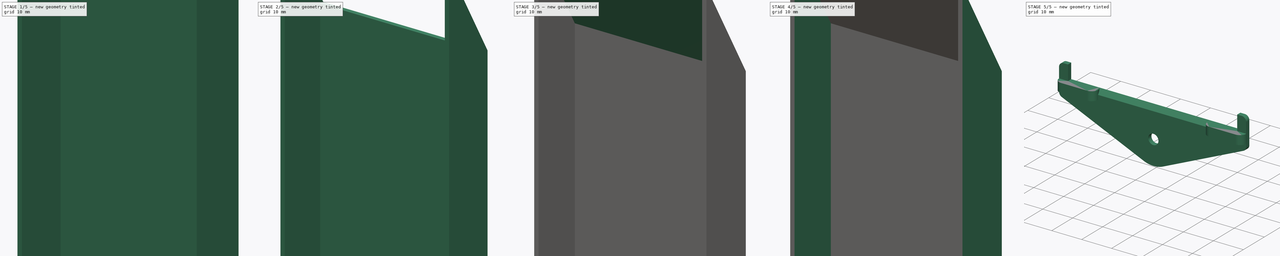
[diagram: build sequence overview — one tinted view per stage of 5, left to right]
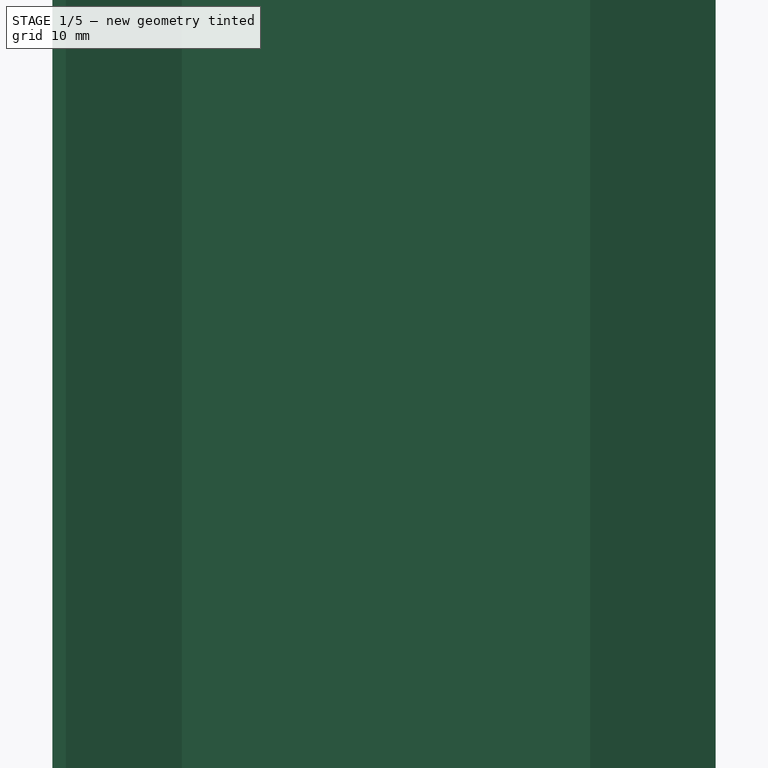
[diagram: stage 1 of 5 — iso view after this stage's code; geometry added in this stage tinted green]
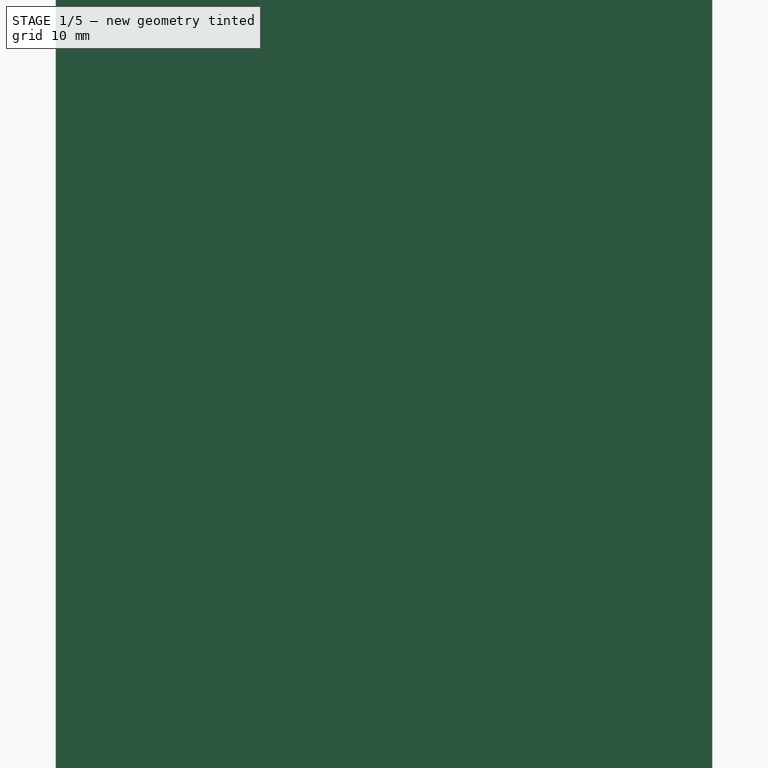
[diagram: stage 1 of 5 — front view after this stage's code; geometry added in this stage tinted green]
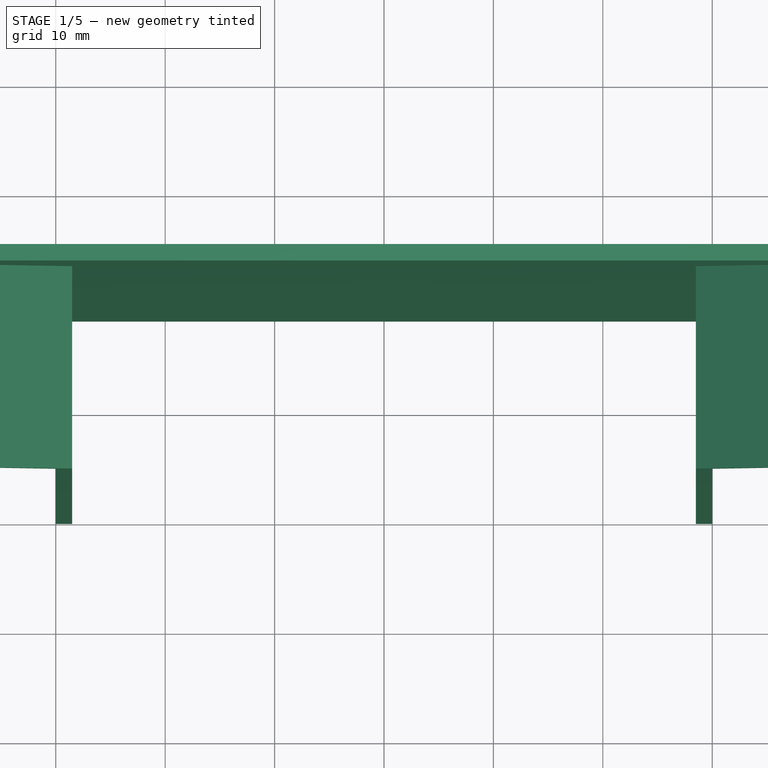
[diagram: stage 1 of 5 — top view after this stage's code; geometry added in this stage tinted green]
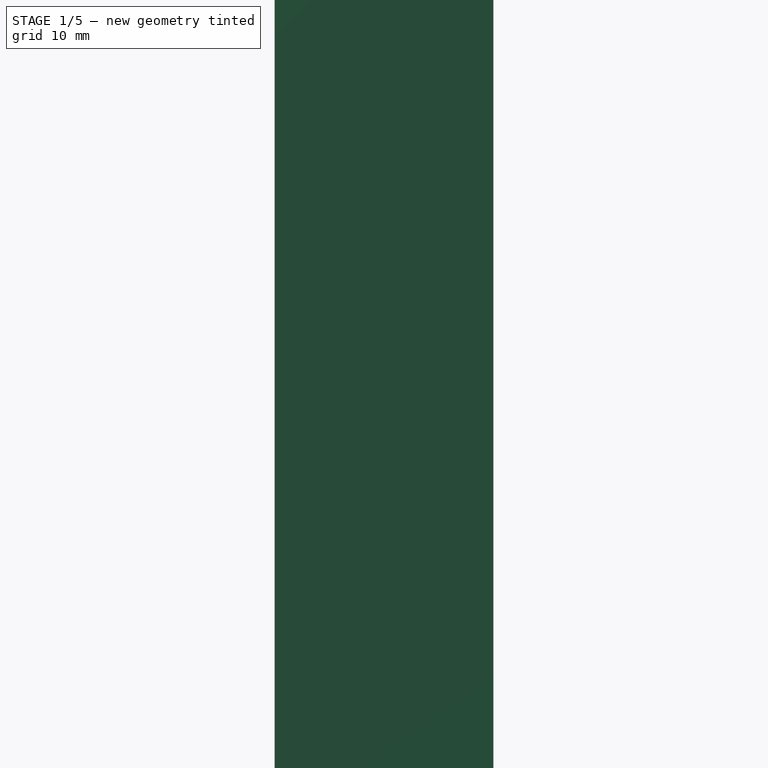
[diagram: stage 1 of 5 — right view after this stage's code; geometry added in this stage tinted green]
FCSTD DOCUMENT  (FreeCAD 1.1R20260325 (Git shallow))
Label: PoopChute
License: Creative Commons Attribution 4.0
objects: Sketcher::SketchObject×18, PartDesign::Pad×11, PartDesign::Pocket×5, App::Point×3, PartDesign::Hole×3, PartDesign::Body×3, PartDesign::SubShapeBinder×2, PartDesign::LinearPattern×1, PartDesign::Chamfer×1
note: 103 computed .brp shape members not serialized (recipe doc carries the construction recipe); baked Part::Feature solids carry a one-line shape summary decoded from their .brp

FEATURE [App::Point] Origin001
  Role = Origin
FEATURE [Sketcher::SketchObject] Sketch
  ArcFitTolerance = 1e-06
  AttachmentSupport = -> [Origin]
  ExternalTypes = [0,0,0,0,0,0,0,0]
  FullyConstrained = true
  MakeInternals = false
  MapMode = 5
  _ExternalGeoVersion = 1
  sketch-geometry (8):
    g0: LineSegment StartX=-30 StartY=0 StartZ=0 EndX=-30 EndY=-20 EndZ=0
    g1: LineSegment StartX=30 StartY=-20 StartZ=0 EndX=30 EndY=0 EndZ=0
    g2: LineSegment StartX=30 StartY=0 StartZ=0 EndX=-30 EndY=0 EndZ=0
    g3: LineSegment StartX=-28.5 StartY=-1.5 StartZ=0 EndX=-28.5 EndY=-20 EndZ=0
    g4: LineSegment StartX=28.5 StartY=-20 StartZ=0 EndX=28.5 EndY=-1.5 EndZ=0
    g5: LineSegment StartX=28.5 StartY=-1.5 StartZ=0 EndX=-28.5 EndY=-1.5 EndZ=0
    g6: LineSegment StartX=-30 StartY=-20 StartZ=0 EndX=-28.5 EndY=-20 EndZ=0
    g7: LineSegment StartX=28.5 StartY=-20 StartZ=0 EndX=30 EndY=-20 EndZ=0
  constraints (22):
    c: Coincident(g1,g2)
    c: Coincident(g2,g0)
    c: Vertical(g0)
    c: Vertical(g1)
    c: Horizontal(g2)
    c: Coincident(g4,g5)
    c: Coincident(g5,g3)
    c: Vertical(g3)
    c: Vertical(g4)
    c: Symmetric(g0,g1,g-1)
    c: Symmetric(g3,g4,g-2)
    c: DistanceY(g0,g0) = 20
    c: DistanceX(g2,g2) = 60
    c: DistanceX(g4,g1) = 1.5
    c: DistanceY(g4,g1) = 1.5
    c: Coincident(g6,g0)
    c: Coincident(g6,g3)
    c: Coincident(g7,g4)
    c: Coincident(g7,g1)
    c: Horizontal(g7)
    c: Horizontal(g6)
    c: Horizontal(g3,g4)
FEATURE [PartDesign::Pad] Pad
  Direction = (0,0,1)
  Length = 290
  Length2 = 10
  Profile = -> Sketch
  ReferenceAxis = -> Sketch [N_Axis]
  SideType = 0
  Suppressed = false
  Type = 0
  Type2 = 0
FEATURE [Sketcher::SketchObject] Sketch001
  ArcFitTolerance = 1e-06
  AttachmentSupport = -> [Pad]
  ExternalGeometry = -> [Pad]
  ExternalTypes = [0,0,0,0]
  FullyConstrained = true
  MakeInternals = false
  MapMode = 5
  Placement = pos=(0,-20,0) rot=(1,0,0;1.5708rad)
  _ExternalGeoVersion = 1
  sketch-geometry (8):
    g0: LineSegment StartX=-59.9142 StartY=318.586 StartZ=0 EndX=-58.5 EndY=320 EndZ=0
    g1: LineSegment StartX=-58.5 StartY=320 StartZ=0 EndX=-28.5 EndY=290 EndZ=0
    g2: LineSegment StartX=58.5 StartY=320 StartZ=0 EndX=28.5 EndY=290 EndZ=0
    g3: LineSegment StartX=-59.9142 StartY=318.586 StartZ=0 EndX=-30 EndY=288.672 EndZ=0
    g4: LineSegment StartX=58.5 StartY=320 StartZ=0 EndX=59.9142 EndY=318.586 EndZ=0
    g5: LineSegment StartX=59.9142 StartY=318.586 StartZ=0 EndX=30 EndY=288.672 EndZ=0
    g6: LineSegment StartX=-30 StartY=288.672 StartZ=0 EndX=-28.5 EndY=290 EndZ=0
    g7: LineSegment StartX=28.5 StartY=290 StartZ=0 EndX=30 EndY=288.672 EndZ=0
  constraints (20):
    c: Coincident(g0,g1)
    c: Perpendicular(g0,g1)
    c: Symmetric(g0,g2,g-2)
    c: Coincident(g1,g-6)
    c: Coincident(g3,g0)
    c: PointOnObject(g3,g-3)
    c: Parallel(g3,g1)
    c: Distance(g0) = 2
    c: DistanceY(g1,g0) = 30
    c: Angle(g-3,g3) = 0.785398
    c: Coincident(g2,g-5)
    c: Coincident(g4,g2)
    c: Coincident(g5,g4)
    c: PointOnObject(g5,g-4)
    c: Coincident(g6,g3)
    c: Coincident(g6,g1)
    c: Coincident(g7,g2)
    c: Coincident(g7,g5)
    c: Symmetric(g0,g4,g-2)
    c: Horizontal(g3,g5)
FEATURE [PartDesign::Pad] Pad001
  BaseFeature = -> Pad
  Direction = (0,-1,2e-16)
  Length = 10
  Length2 = 10
  Profile = -> Sketch001
  ReferenceAxis = -> Sketch001 [N_Axis]
  Refine = true
  Reversed = true
  SideType = 0
  Suppressed = false
  Type = 3
  Type2 = 0
  UpToFace = -> Pad [Face3]
FEATURE [Sketcher::SketchObject] Sketch002
  ArcFitTolerance = 1e-06
  AttachmentSupport = -> [Pad001]
  ExternalGeometry = -> [Pad001]
  ExternalTypes = [0,0,0]
  FullyConstrained = true
  MakeInternals = false
  MapMode = 5
  Placement = pos=(0,-1.5,0) rot=(1,0,0;1.5708rad)
  _ExternalGeoVersion = 1
  sketch-geometry (1):
    g0: LineSegment StartX=58.5 StartY=320 StartZ=0 EndX=-58.5 EndY=320 EndZ=0
  constraints (2):
    c: Coincident(g0,g-5)
    c: Coincident(g0,g-3)
FEATURE [PartDesign::Pad] Pad002
  BaseFeature = -> Pad001
  Direction = (0,-1,0)
  Length = 10
  Length2 = 10
  Profile = -> Sketch002
  ReferenceAxis = -> Sketch002 [N_Axis]
  Refine = true
  Reversed = true
  SideType = 0
  Suppressed = false
  Type = 3
  Type2 = 0
  UpToFace = -> Pad001 [Face16]
FEATURE [Sketcher::SketchObject] Sketch003
  ArcFitTolerance = 1e-06
  AttachmentSupport = -> [Pad001]
  ExternalTypes = [0,0]
  FullyConstrained = true
  MakeInternals = false
  MapMode = 5
  Placement = pos=(0,0,0) rot=(0,0.707107,0.707107;3.14159rad)
  _ExternalGeoVersion = 1
  sketch-geometry (19):
    g0: ArcOfCircle CenterX=-35.6569 CenterY=290 CenterZ=0 NormalX=0 NormalY=0 NormalZ=1 AngleXU=0 Radius=5 StartAngle=3.14159 EndAngle=3.92699
    g1: LineSegment StartX=-40.6569 StartY=290 StartZ=0 EndX=-40.6569 EndY=300.657 EndZ=0
    g2: ArcOfCircle CenterX=-35 CenterY=5 CenterZ=0 NormalX=0 NormalY=0 NormalZ=1 AngleXU=0 Radius=5 StartAngle=1.5708 EndAngle=4.71239
    g3: ArcOfCircle CenterX=35 CenterY=5 CenterZ=0 NormalX=0 NormalY=0 NormalZ=1 AngleXU=0 Radius=5 StartAngle=4.71239 EndAngle=7.85398
    g4: LineSegment StartX=35 StartY=10 StartZ=0 EndX=30 EndY=10 EndZ=0
    g5: LineSegment StartX=30 StartY=10 StartZ=0 EndX=30 EndY=0 EndZ=0
    g6: LineSegment StartX=30 StartY=0 StartZ=0 EndX=35 EndY=9e-16 EndZ=0
    g7: LineSegment StartX=-35 StartY=10 StartZ=0 EndX=-30 EndY=10 EndZ=0
    g8: LineSegment StartX=-30 StartY=10 StartZ=0 EndX=-30 EndY=0 EndZ=0
    g9: LineSegment StartX=-30 StartY=0 StartZ=0 EndX=-35 EndY=0 EndZ=0
    g10: LineSegment StartX=-40.6569 StartY=300.657 StartZ=0 EndX=-30 EndY=290 EndZ=0
    g11: LineSegment StartX=-30 StartY=290 StartZ=0 EndX=-30 EndY=277.272 EndZ=0
    g12: LineSegment StartX=-30 StartY=277.272 StartZ=0 EndX=-39.1924 EndY=286.464 EndZ=0
    g13: Circle [constr] CenterX=-35.6569 CenterY=290 CenterZ=0 NormalX=0 NormalY=0 NormalZ=1 AngleXU=0 Radius=4
    g14: LineSegment StartX=30 StartY=290 StartZ=0 EndX=40.6569 EndY=300.657 EndZ=0
    g15: LineSegment StartX=40.6569 StartY=300.657 StartZ=0 EndX=40.6569 EndY=290 EndZ=0
    g16: ArcOfCircle CenterX=35.6569 CenterY=290 CenterZ=0 NormalX=0 NormalY=0 NormalZ=1 AngleXU=0 Radius=5 StartAngle=5.49779 EndAngle=6.28319
    g17: LineSegment StartX=39.1924 StartY=286.464 StartZ=0 EndX=30 EndY=277.272 EndZ=0
    g18: LineSegment StartX=30 StartY=277.272 StartZ=0 EndX=30 EndY=290 EndZ=0
  constraints (49):
    c: Horizontal(g0,g0)
    c: Coincident(g1,g0)
    c: PointOnObject(g1,g-3)
    c: Vertical(g1)
    c: Vertical(g3,g3)
    c: Vertical(g3,g3)
    c: Vertical(g2,g2)
    c: Vertical(g2,g2)
    c: PointOnObject(g2,g-1)
    c: Symmetric(g2,g3,g-2)
    c: Tangent(g3,g4) = -1.5708
    c: Coincident(g4,g5)
    c: PointOnObject(g5,g-1)
    c: Vertical(g5)
    c: Coincident(g5,g6)
    c: Coincident(g6,g3)
    c: Tangent(g2,g7) = 1.5708
    c: Coincident(g7,g8)
    c: PointOnObject(g8,g-1)
    c: Vertical(g8)
    c: Coincident(g8,g9)
    c: Symmetric(g7,g4,g-2)
    c: DistanceY(g5,g5) = 10
    c: DistanceX(g6,g6) = 5
    c: Coincident(g9,g2)
    c: Horizontal(g0,g-3)
    c: Coincident(g1,g10)
    c: Coincident(g10,g-3)
    c: Coincident(g10,g11)
    c: Vertical(g11)
    c: Coincident(g11,g12)
    c: Diameter(g13) = 8
    c: Coincident(g13,g0)
    c: Tangent(g13,g10)
    c: Radius(g0) = 5
    c: Coincident(g-4,g14)
    c: Coincident(g14,g15)
    c: Vertical(g15)
    c: Coincident(g17,g18)
    c: Coincident(g18,g14)
    c: Symmetric(g11,g17,g-2)
    c: Symmetric(g1,g14,g-2)
    c: Vertical(g7,g11)
    c: Tangent(g12,g0) = 1.5708
    c: Tangent(g16,g17) = 1.5708
    c: Angle(g11,g12) = 0.785398
    c: Symmetric(g0,g16,g-2)
    c: Horizontal(g16,g15)
    c: Coincident(g16,g15)
FEATURE [PartDesign::Pad] Pad003
  BaseFeature = -> Pad002
  Direction = (0,1,-2e-16)
  Length = 2
  Length2 = 10
  Profile = -> Sketch003
  ReferenceAxis = -> Sketch003 [N_Axis]
  Refine = true
  Reversed = true
  SideType = 0
  Suppressed = false
  Type = 0
  Type2 = 0
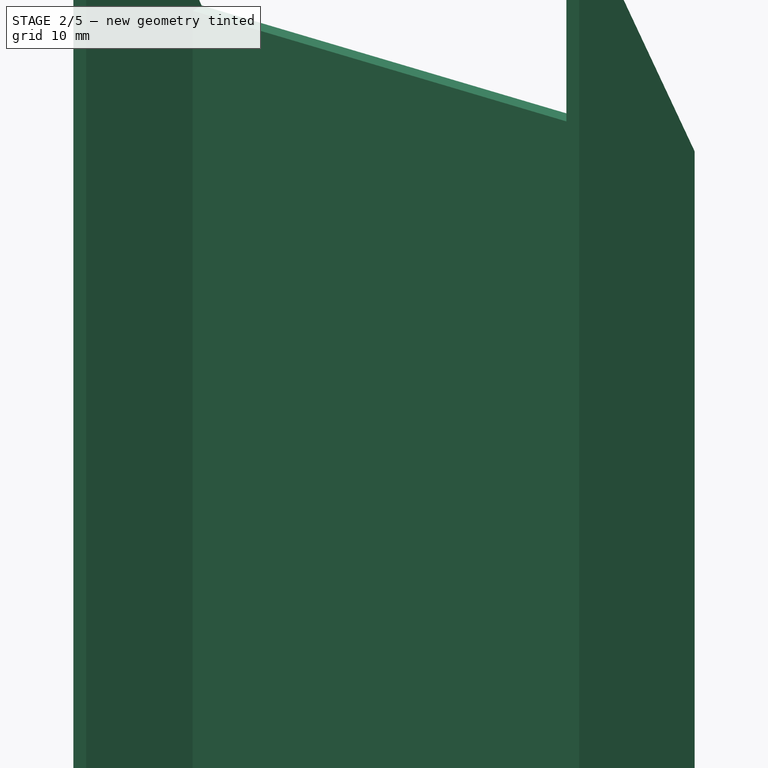
[diagram: stage 2 of 5 — iso view after this stage's code; geometry added in this stage tinted green]
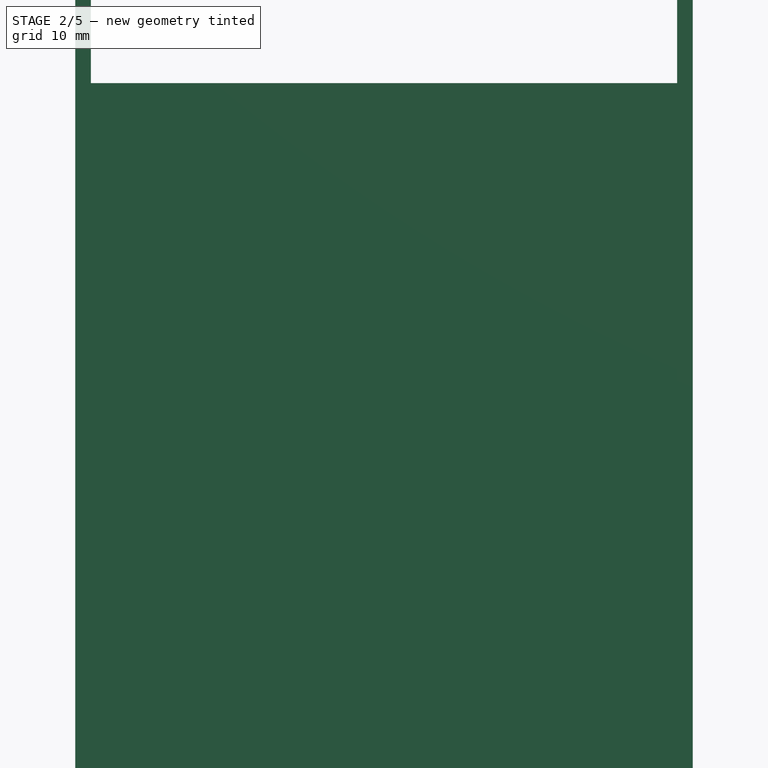
[diagram: stage 2 of 5 — front view after this stage's code; geometry added in this stage tinted green]
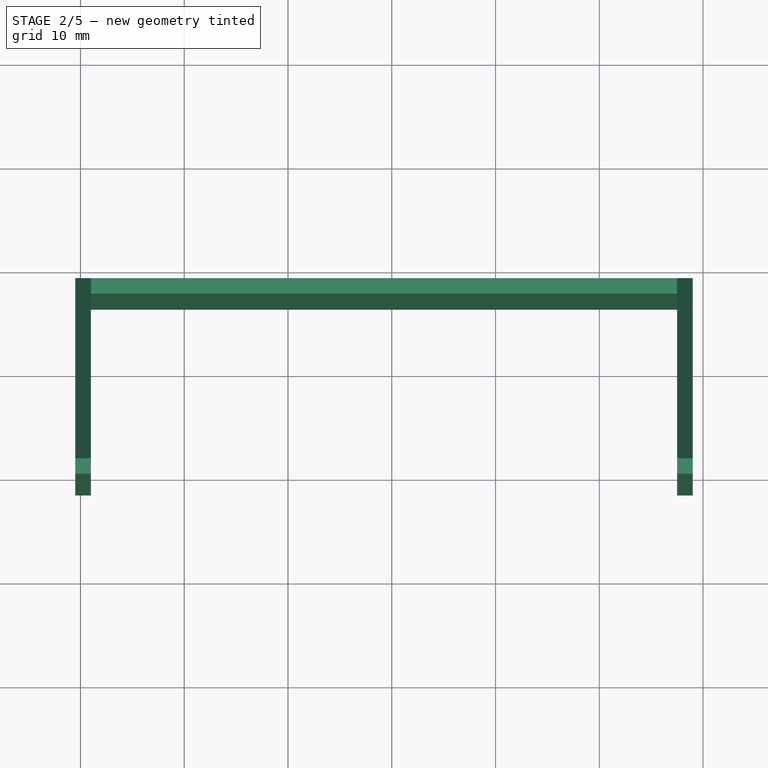
[diagram: stage 2 of 5 — top view after this stage's code; geometry added in this stage tinted green]
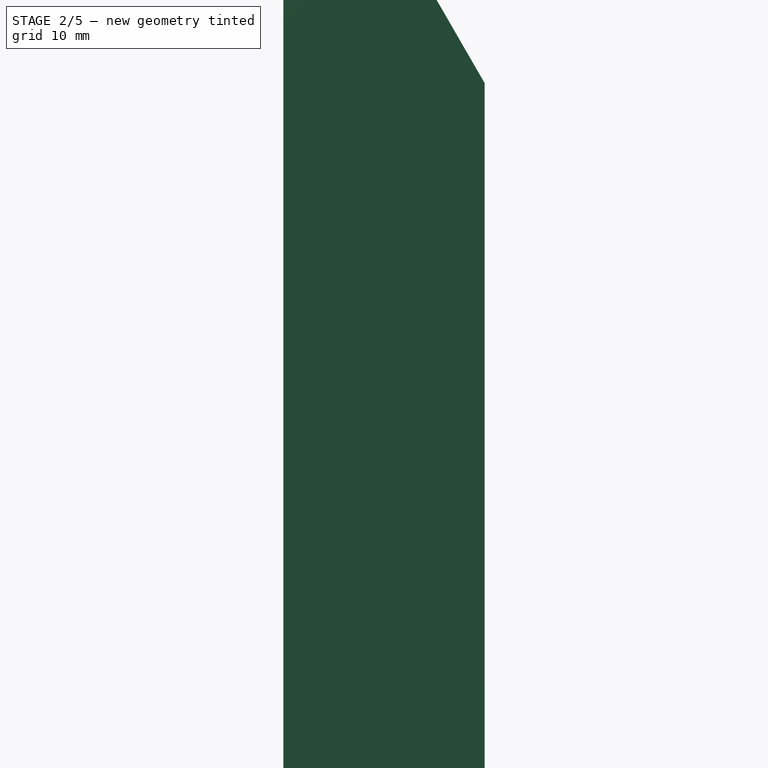
[diagram: stage 2 of 5 — right view after this stage's code; geometry added in this stage tinted green]
FEATURE [Sketcher::SketchObject] Sketch004
  ArcFitTolerance = 1e-06
  ExternalGeometry = -> [Pad003]
  ExternalTypes = [0,0]
  FullyConstrained = true
  MakeInternals = false
  MapMode = 5
  Placement = pos=(0,-2,0) rot=(1,0,0;1.5708rad)
  _ExternalGeoVersion = 1
  sketch-geometry (4):
    g0: GeomPoint X=-35.6569 Y=290 Z=0
    g1: GeomPoint X=35.6569 Y=290 Z=0
    g2: GeomPoint X=-35 Y=5 Z=0
    g3: GeomPoint X=35 Y=5 Z=0
  constraints (4):
    c: Symmetric(g0,g1,g-2)
    c: Coincident(g0,g-3)
    c: Coincident(g2,g-4)
    c: Symmetric(g2,g3,g-2)
FEATURE [PartDesign::Hole] Hole
  BaseFeature = -> Pad003
  BaseProfileType = 7
  CustomThreadClearance = 0
  Depth = 673.872
  DepthType = 1
  Diameter = 4
  DrillForDepth = false
  DrillPoint = 1
  DrillPointAngle = 118
  HoleCutCountersinkAngle = 90
  HoleCutCustomValues = false
  HoleCutDepth = 0
  HoleCutDiameter = 0
  HoleCutType = 0
  ModelThread = false
  Profile = -> Sketch004
  Suppressed = false
  Tapered = false
  TaperedAngle = 90
  ThreadClass = 0
  ThreadDepth = 673.872
  ThreadDepthType = 0
  ThreadDiameter = 4
  ThreadDirection = 0
  ThreadFit = 0
  ThreadSize = 0
  ThreadType = 0
  Threaded = false
  UseCustomThreadClearance = false
FEATURE [PartDesign::Body] Body
  AllowCompound = false
  Group = -> [Sketch,Pad,Sketch001,Pad001,Sketch002,Pad002,Sketch003,Pad003,Sketch004,Hole]
  Origin = -> Origin
  Tip = -> Hole
FEATURE [App::Point] Origin003
  Role = Origin
FEATURE [PartDesign::SubShapeBinder] Binder
  BindCopyOnChange = 0
  BindMode = 0
  ClaimChildren = false
  Context = -> Body001 [Binder.]
  Fuse = false
  MakeFace = true
  OffsetFill = false
  OffsetIntersection = false
  OffsetJoinType = 0
  OffsetOpenResult = false
  PartialLoad = false
  Refine = true
  Relative = true
  Support = -> [Body]
  _Version = 2
FEATURE [Sketcher::SketchObject] Sketch005
  ArcFitTolerance = 1e-06
  AttachmentOffset = pos=(0,0,-2) rot=(0,0,1;0rad)
  AttachmentSupport = -> [Binder]
  ExternalGeometry = -> [Binder]
  ExternalTypes = [0,0]
  FullyConstrained = true
  MakeInternals = false
  MapMode = 5
  Placement = pos=(-30.5,0,0) rot=(0.57735,0.57735,0.57735;2.0944rad)
  _ExternalGeoVersion = 1
  sketch-geometry (5):
    g0: LineSegment StartX=-2.1 StartY=290 StartZ=0 EndX=-21.5 EndY=290 EndZ=0
    g1: LineSegment StartX=-21.5 StartY=290 StartZ=0 EndX=-21.5 EndY=410 EndZ=0
    g2: LineSegment StartX=-21.5 StartY=410 StartZ=0 EndX=-20 EndY=410 EndZ=0
    g3: LineSegment StartX=-20 StartY=410 StartZ=0 EndX=-2.1 EndY=378.996 EndZ=0
    g4: LineSegment StartX=-2.1 StartY=378.996 StartZ=0 EndX=-2.1 EndY=290 EndZ=0
  constraints (15):
    c: PointOnObject(g0,g-3)
    c: Horizontal(g0)
    c: Coincident(g0,g1)
    c: Vertical(g1)
    c: Coincident(g1,g2)
    c: Horizontal(g2)
    c: Coincident(g2,g3)
    c: Coincident(g3,g4)
    c: Coincident(g4,g0)
    c: Vertical(g4)
    c: Angle(g4,g3) = 0.523599
    c: DistanceY(g1,g1) = 120
    c: DistanceX(g0,g-3) = 0.1
    c: DistanceX(g0,g-4) = 1.5
    c: Vertical(g2,g-4)
FEATURE [PartDesign::Pad] Pad004
  Direction = (1,0,0)
  Length = 1.5
  Length2 = 10
  Profile = -> Sketch005
  ReferenceAxis = -> Sketch005 [N_Axis]
  SideType = 0
  Suppressed = false
  Type = 0
  Type2 = 0
FEATURE [PartDesign::LinearPattern] LinearPattern
  BaseFeature = -> Pad004
  Direction = -> X_Axis001
  Direction2 = -> X_Axis001
  Length = 58
  Length2 = 100
  Mode = 1
  Mode2 = 0
  Occurrences = 2
  Occurrences2 = 1
  Offset = 58
  Offset2 = 100
  Reversed2 = false
  SpacingPattern = [58]
  SpacingPattern2 = [0]
  Spacings = [-1]
  Suppressed = false
  TransformMode = 1
FEATURE [Sketcher::SketchObject] Sketch006
  ArcFitTolerance = 1e-06
  AttachmentSupport = -> [LinearPattern]
  ExternalGeometry = -> [LinearPattern]
  ExternalTypes = [0,0]
  FullyConstrained = true
  MakeInternals = false
  MapMode = 5
  Placement = pos=(0,-2.1,0) rot=(0,0.707107,0.707107;3.14159rad)
  _ExternalGeoVersion = 1
  sketch-geometry (4):
    g0: LineSegment StartX=-27.5 StartY=378.996 StartZ=0 EndX=29 EndY=378.996 EndZ=0
    g1: LineSegment StartX=-27.5 StartY=378.996 StartZ=0 EndX=-27.5 EndY=290 EndZ=0
    g2: LineSegment StartX=-27.5 StartY=290 StartZ=0 EndX=29 EndY=290 EndZ=0
    g3: LineSegment StartX=29 StartY=290 StartZ=0 EndX=29 EndY=378.996 EndZ=0
  constraints (10):
    c: Coincident(g0,g-3)
    c: Coincident(g0,g-4)
    c: Coincident(g1,g0)
    c: Coincident(g3,g2)
    c: Coincident(g3,g0)
    c: Vertical(g3)
    c: Vertical(g1)
    c: Horizontal(g1,g2)
    c: Horizontal(g1,g-3)
    c: Coincident(g2,g1)
FEATURE [PartDesign::Pad] Pad005
  BaseFeature = -> LinearPattern
  Direction = (0,1,-2e-16)
  Length = 1.5
  Length2 = 10
  Profile = -> Sketch006
  ReferenceAxis = -> Sketch006 [N_Axis]
  Refine = true
  Reversed = true
  SideType = 0
  Suppressed = false
  Type = 0
  Type2 = 0
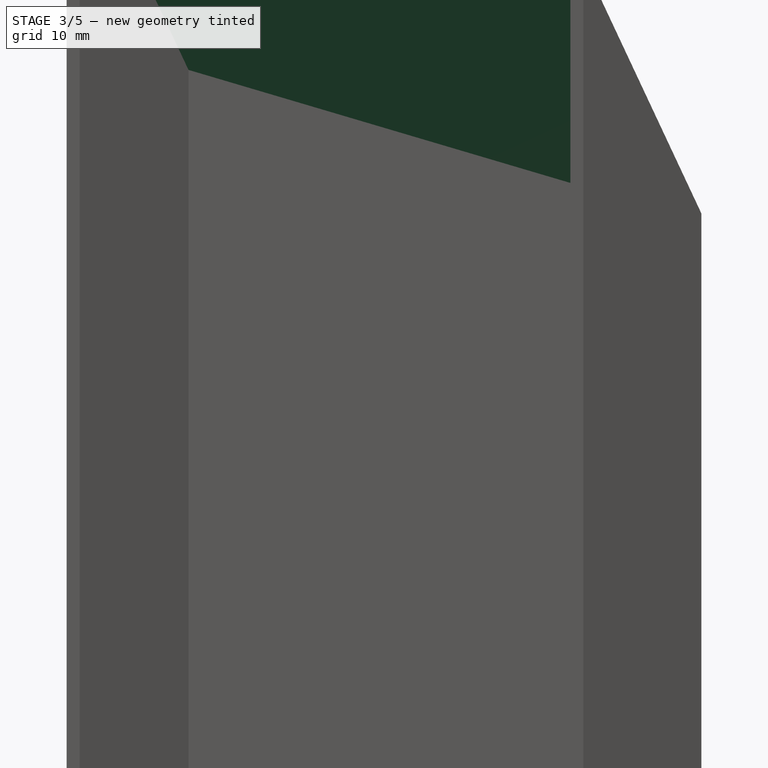
[diagram: stage 3 of 5 — iso view after this stage's code; geometry added in this stage tinted green]
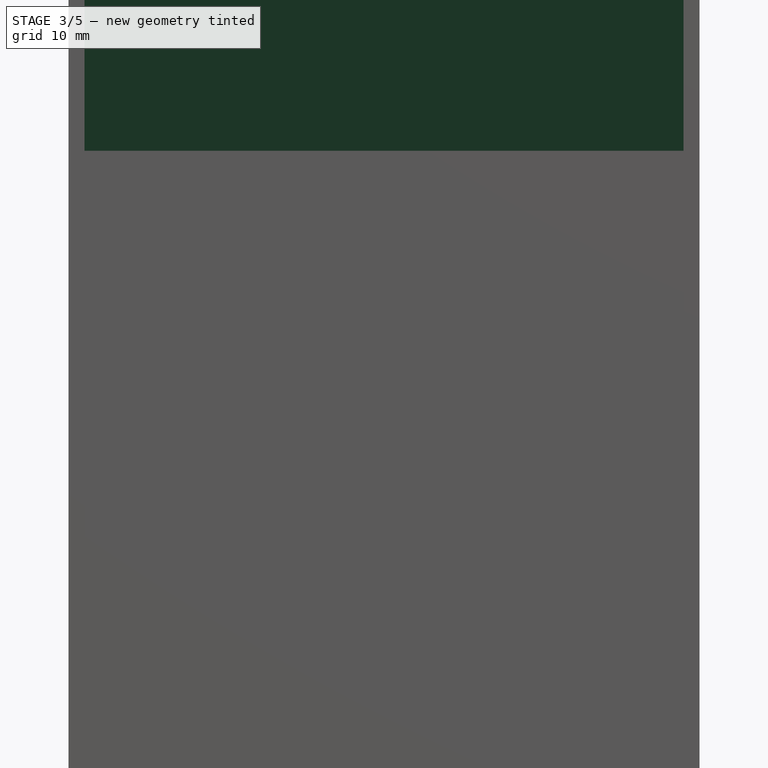
[diagram: stage 3 of 5 — front view after this stage's code; geometry added in this stage tinted green]
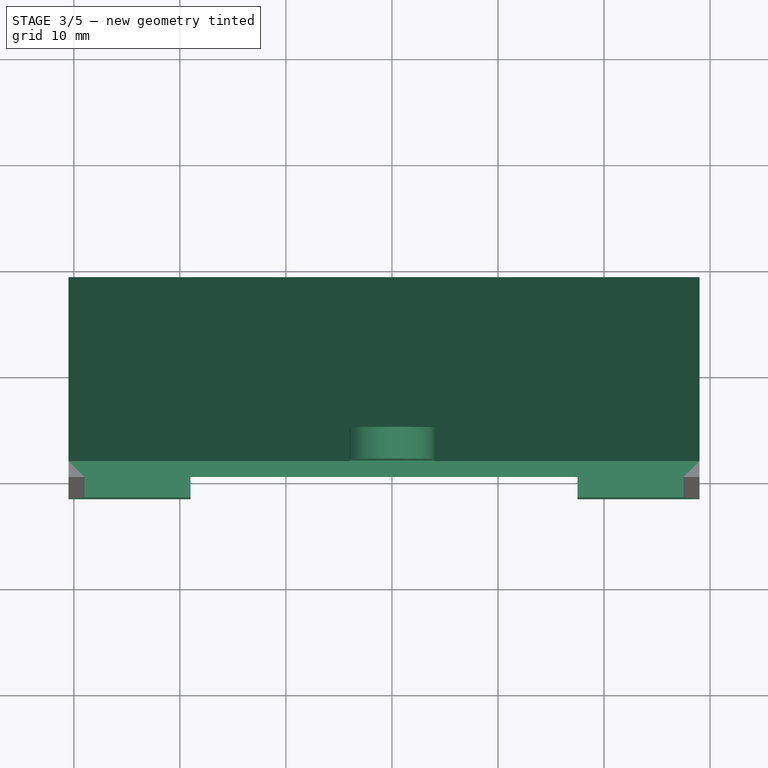
[diagram: stage 3 of 5 — top view after this stage's code; geometry added in this stage tinted green]
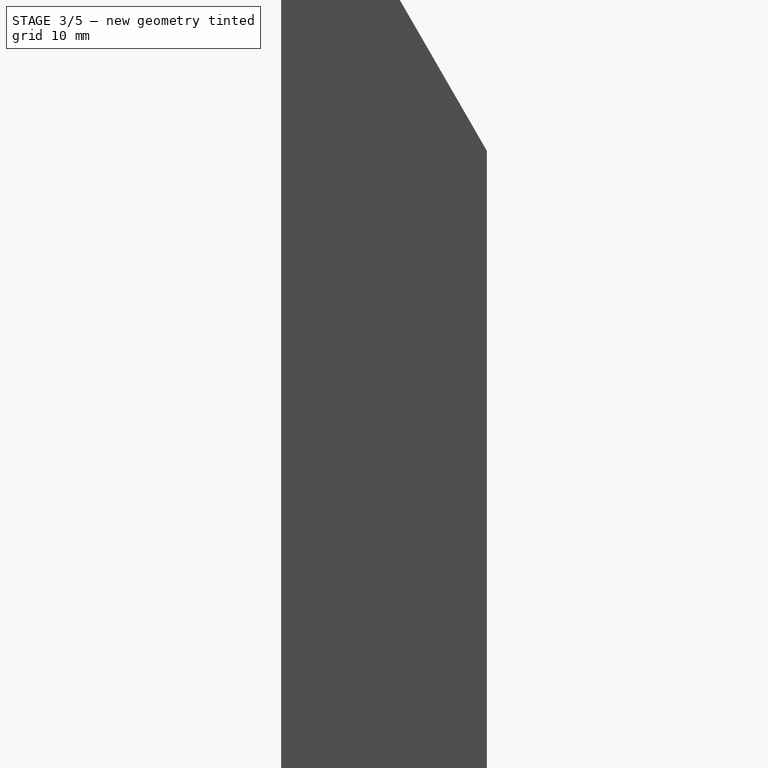
[diagram: stage 3 of 5 — right view after this stage's code; geometry added in this stage tinted green]
FEATURE [Sketcher::SketchObject] Sketch007
  ArcFitTolerance = 1e-06
  AttachmentSupport = -> [Pad005]
  ExternalGeometry = -> [Pad005]
  ExternalTypes = [0,0,0]
  FullyConstrained = true
  MakeInternals = false
  MapMode = 5
  Placement = pos=(27.5,0,0) rot=(0.57735,-0.57735,-0.57735;2.0944rad)
  _ExternalGeoVersion = 1
  sketch-geometry (1):
    g0: LineSegment StartX=3.6 StartY=378.996 StartZ=0 EndX=21.5 EndY=410 EndZ=0
  constraints (2):
    c: Coincident(g0,g-5)
    c: Coincident(g0,g-4)
FEATURE [PartDesign::Pad] Pad006
  BaseFeature = -> Pad005
  Direction = (-1,0,0)
  Length = 10
  Length2 = 10
  Profile = -> Sketch007
  ReferenceAxis = -> Sketch007 [N_Axis]
  Refine = true
  SideType = 0
  Suppressed = false
  Type = 3
  Type2 = 0
  UpToFace = -> Pad005 [Face5]
FEATURE [Sketcher::SketchObject] Sketch008
  ArcFitTolerance = 1e-06
  AttachmentOffset = pos=(0,0,-1.5) rot=(0,0,1;0rad)
  AttachmentSupport = -> [Pad006]
  ExternalGeometry = -> [Pad006]
  ExternalTypes = [0]
  FullyConstrained = true
  MakeInternals = false
  MapMode = 5
  Placement = pos=(0,-20,-3e-16) rot=(1,0,0;1.5708rad)
  _ExternalGeoVersion = 1
  sketch-geometry (4):
    g0: LineSegment StartX=-4 StartY=404.5 StartZ=0 EndX=-4 EndY=420 EndZ=0
    g1: ArcOfCircle CenterX=0 CenterY=420 CenterZ=0 NormalX=0 NormalY=0 NormalZ=1 AngleXU=0 Radius=4 StartAngle=-3.6e-15 EndAngle=3.14159
    g2: LineSegment StartX=4 StartY=420 StartZ=0 EndX=4 EndY=404.5 EndZ=0
    g3: LineSegment StartX=4 StartY=404.5 StartZ=0 EndX=-4 EndY=404.5 EndZ=0
  constraints (13):
    c: Vertical(g0)
    c: Coincident(g1,g2)
    c: Vertical(g2)
    c: Coincident(g2,g3)
    c: Coincident(g3,g0)
    c: Coincident(g0,g1)
    c: Horizontal(g1,g1)
    c: Horizontal(g0,g1)
    c: PointOnObject(g1,g-2)
    c: DistanceX(g3,g3) = 8
    c: Horizontal(g3)
    c: DistanceY(g0,g-3) = 5.5
    c: DistanceY(g-3,g1) = 10
FEATURE [PartDesign::Pad] Pad007
  BaseFeature = -> Pad006
  Direction = (0,-1,2e-16)
  Length = 3
  Length2 = 10
  Profile = -> Sketch008
  ReferenceAxis = -> Sketch008 [N_Axis]
  Refine = true
  Reversed = true
  SideType = 0
  Suppressed = false
  Type = 0
  Type2 = 0
FEATURE [Sketcher::SketchObject] Sketch009
  ArcFitTolerance = 1e-06
  AttachmentSupport = -> [Pad007]
  ExternalGeometry = -> [Pad007]
  ExternalTypes = [0,0]
  FullyConstrained = true
  MakeInternals = false
  MapMode = 5
  Placement = pos=(0,0,290) rot=(1,0,0;3.14159rad)
  _ExternalGeoVersion = 1
  sketch-geometry (6):
    g0: LineSegment StartX=-29 StartY=21.5 StartZ=0 EndX=-19 EndY=21.5 EndZ=0
    g1: LineSegment StartX=-19 StartY=21.5 StartZ=0 EndX=-19 EndY=3.6 EndZ=0
    g2: LineSegment StartX=-19 StartY=3.6 StartZ=0 EndX=-29 EndY=3.6 EndZ=0
    g3: LineSegment StartX=27.5 StartY=21.5 StartZ=0 EndX=17.5 EndY=21.5 EndZ=0
    g4: LineSegment StartX=17.5 StartY=21.5 StartZ=0 EndX=17.5 EndY=3.6 EndZ=0
    g5: LineSegment StartX=17.5 StartY=3.6 StartZ=0 EndX=27.5 EndY=3.6 EndZ=0
  constraints (16):
    c: Horizontal(g0)
    c: Coincident(g0,g1)
    c: Vertical(g1)
    c: Coincident(g1,g2)
    c: Horizontal(g2)
    c: Horizontal(g3)
    c: Coincident(g3,g4)
    c: Vertical(g4)
    c: Coincident(g4,g5)
    c: Horizontal(g5)
    c: Equal(g0,g3)
    c: DistanceX(g0,g0) = 10
    c: Coincident(g2,g-3)
    c: Coincident(g0,g-3)
    c: Coincident(g5,g-4)
    c: Coincident(g3,g-4)
FEATURE [PartDesign::Pocket] Pocket002
  BaseFeature = -> Pad007
  Direction = (-1,0,0)
  Length = 8
  Length2 = 5
  Profile = -> Pad007 [Face19]
  Refine = true
  SideType = 0
  Suppressed = false
  Type = 0
  Type2 = 0
FEATURE [Sketcher::SketchObject] Sketch012
  ArcFitTolerance = 1e-06
  AttachmentSupport = -> [Pocket002]
  ExternalGeometry = -> [Pocket002]
  ExternalTypes = [0]
  FullyConstrained = true
  MakeInternals = false
  MapMode = 5
  Placement = pos=(4,0,0) rot=(0.57735,0.57735,0.57735;2.0944rad)
  _ExternalGeoVersion = 1
  sketch-geometry (4):
    g0: LineSegment StartX=-20 StartY=410 StartZ=0 EndX=-19 EndY=410 EndZ=0
    g1: LineSegment StartX=-19 StartY=410 StartZ=0 EndX=-19 EndY=411.5 EndZ=0
    g2: LineSegment StartX=-20 StartY=412.5 StartZ=0 EndX=-20 EndY=410 EndZ=0
    g3: LineSegment StartX=-19 StartY=411.5 StartZ=0 EndX=-20 EndY=412.5 EndZ=0
  constraints (11):
    c: Coincident(g0,g1)
    c: Coincident(g2,g0)
    c: Horizontal(g0)
    c: Vertical(g1)
    c: Vertical(g2)
    c: Distance(g1,g2) = 1
    c: Coincident(g0,g-3)
    c: DistanceY(g1,g1) = 1.5
    c: Coincident(g3,g1)
    c: Coincident(g3,g2)
    c: Angle(g2,g3) = 0.785398
FEATURE [PartDesign::Pocket] Pocket003
  BaseFeature = -> Pocket002
  Direction = (-1,0,0)
  Length = 5
  Length2 = 5
  Profile = -> Sketch012
  ReferenceAxis = -> Sketch012 [N_Axis]
  Refine = true
  SideType = 0
  Suppressed = false
  Type = 1
  Type2 = 0
FEATURE [PartDesign::Pad] Pad008
  BaseFeature = -> Pocket003
  Direction = (0,0,-1)
  Length = 10
  Length2 = 10
  Profile = -> Sketch009
  ReferenceAxis = -> Sketch009 [N_Axis]
  Refine = true
  Reversed = true
  SideType = 0
  Suppressed = false
  Type = 0
  Type2 = 0
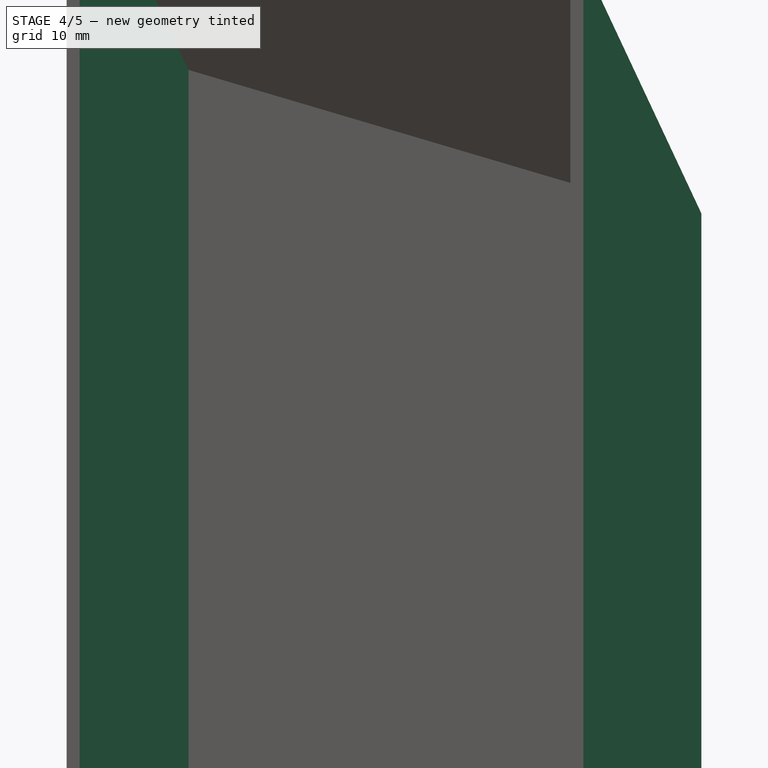
[diagram: stage 4 of 5 — iso view after this stage's code; geometry added in this stage tinted green]
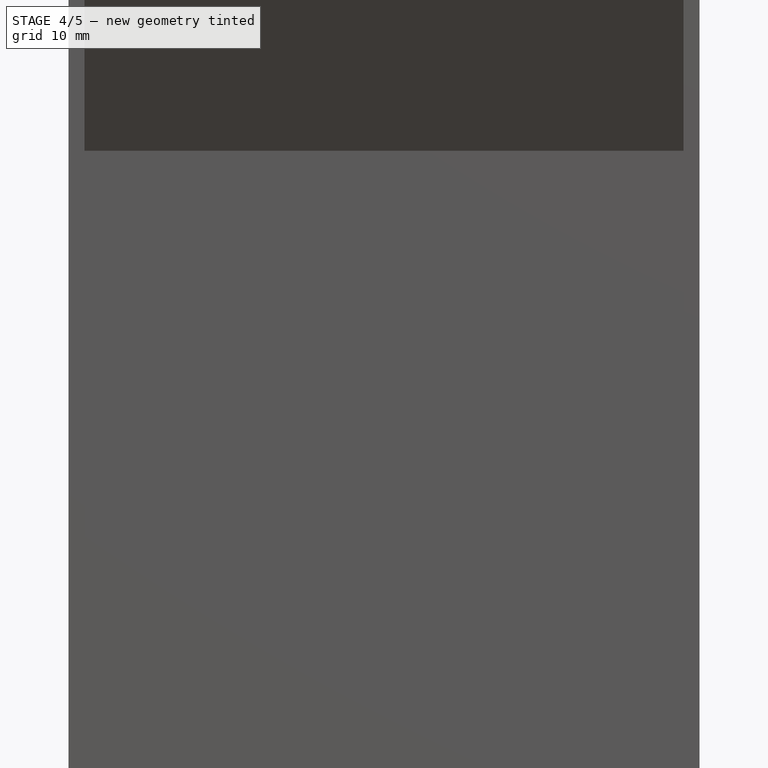
[diagram: stage 4 of 5 — front view after this stage's code; geometry added in this stage tinted green]
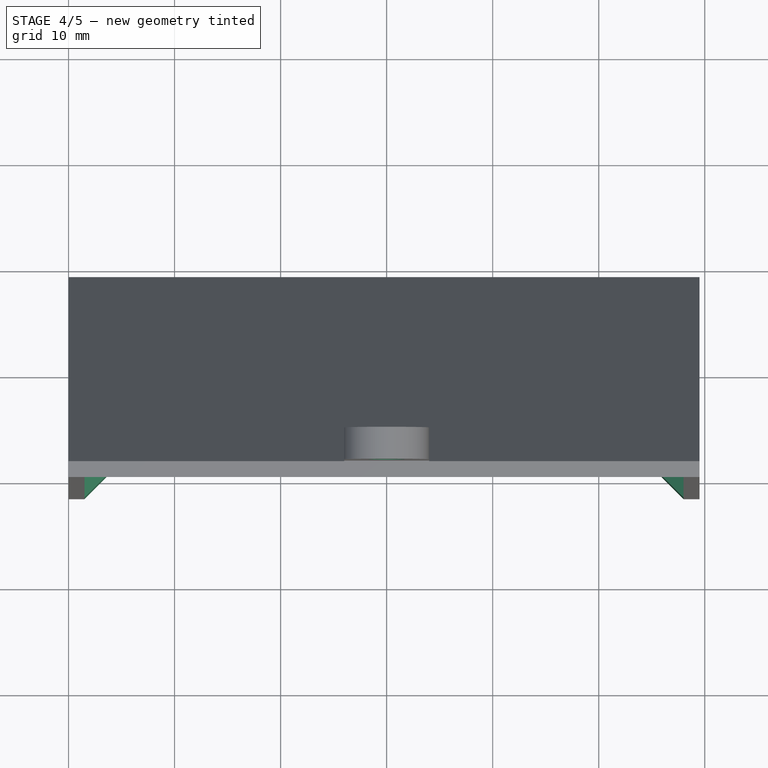
[diagram: stage 4 of 5 — top view after this stage's code; geometry added in this stage tinted green]
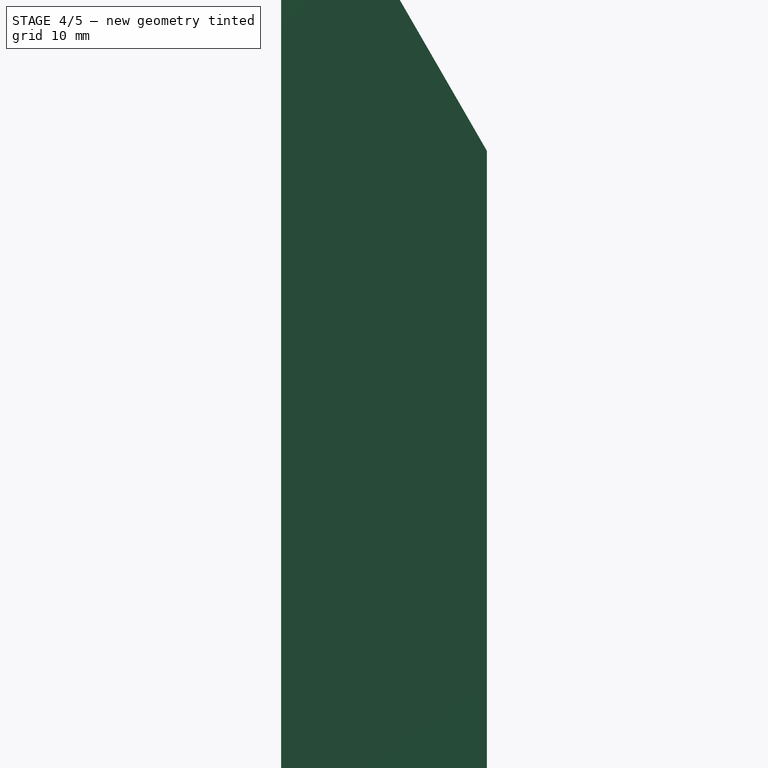
[diagram: stage 4 of 5 — right view after this stage's code; geometry added in this stage tinted green]
FEATURE [Sketcher::SketchObject] Sketch010
  ArcFitTolerance = 1e-06
  AttachmentSupport = -> [Pad008]
  ExternalGeometry = -> [Pad008]
  ExternalTypes = [0,0]
  FullyConstrained = true
  MakeInternals = false
  MapMode = 5
  Placement = pos=(0,0,300) rot=(0,0,1;0rad)
  _ExternalGeoVersion = 1
  sketch-geometry (4):
    g0: LineSegment StartX=-29 StartY=-21.5 StartZ=0 EndX=-19 EndY=-11.5 EndZ=0
    g1: LineSegment StartX=-19 StartY=-11.5 StartZ=0 EndX=-19 EndY=-21.5 EndZ=0
    g2: LineSegment StartX=27.5 StartY=-21.5 StartZ=0 EndX=17.5 EndY=-11.5 EndZ=0
    g3: LineSegment StartX=17.5 StartY=-11.5 StartZ=0 EndX=17.5 EndY=-21.5 EndZ=0
  constraints (10):
    c: Coincident(g0,g-3)
    c: Coincident(g1,g0)
    c: Coincident(g1,g-3)
    c: Vertical(g1)
    c: Equal(g-3,g1)
    c: Coincident(g2,g-4)
    c: Coincident(g3,g2)
    c: Coincident(g3,g-4)
    c: Vertical(g3)
    c: Equal(g3,g-4)
FEATURE [PartDesign::Pocket] Pocket
  BaseFeature = -> Pad008
  Direction = (0,0,-1)
  Length = 5
  Length2 = 5
  Profile = -> Sketch010
  ReferenceAxis = -> Sketch010 [N_Axis]
  SideType = 0
  Suppressed = false
  Type = 1
  Type2 = 0
FEATURE [Sketcher::SketchObject] Sketch011
  ArcFitTolerance = 1e-06
  AttachmentOffset = pos=(0,0,-1.5) rot=(0,0,1;0rad)
  AttachmentSupport = -> [Pocket]
  ExternalGeometry = -> [Pocket]
  ExternalTypes = [0,0,0,0]
  FullyConstrained = true
  MakeInternals = false
  MapMode = 5
  Placement = pos=(0,-3.6,3e-16) rot=(0,0.707107,0.707107;3.14159rad)
  _ExternalGeoVersion = 1
  sketch-geometry (2):
    g0: LineSegment StartX=-27.5 StartY=300 StartZ=0 EndX=-18 EndY=290 EndZ=0
    g1: LineSegment StartX=29 StartY=300 StartZ=0 EndX=18.5 EndY=290 EndZ=0
  constraints (4):
    c: Coincident(g0,g-5)
    c: Coincident(g0,g-3)
    c: Coincident(g1,g-6)
    c: Coincident(g1,g-4)
FEATURE [PartDesign::Pocket] Pocket001
  BaseFeature = -> Pocket
  Direction = (0,-1,2e-16)
  Length = 5
  Length2 = 5
  Profile = -> Sketch011
  ReferenceAxis = -> Sketch011 [N_Axis]
  Refine = true
  SideType = 0
  Suppressed = false
  Type = 1
  Type2 = 0
FEATURE [Sketcher::SketchObject] Sketch013
  ArcFitTolerance = 1e-06
  AttachmentSupport = -> [Pocket001]
  ExternalGeometry = -> [Pocket001]
  ExternalTypes = [0]
  FullyConstrained = true
  MakeInternals = false
  MapMode = 5
  Placement = pos=(0,-17,0) rot=(0,0.707107,0.707107;3.14159rad)
  _ExternalGeoVersion = 1
  sketch-geometry (1):
    g0: GeomPoint X=0 Y=420 Z=0
  constraints (1):
    c: Coincident(g0,g-3)
FEATURE [PartDesign::Hole] Hole001
  BaseFeature = -> Pocket001
  BaseProfileType = 7
  CustomThreadClearance = 0
  Depth = 298.692
  DepthType = 1
  Diameter = 3.4
  DrillForDepth = false
  DrillPoint = 1
  DrillPointAngle = 118
  HoleCutCountersinkAngle = 90
  HoleCutCustomValues = false
  HoleCutDepth = 1.5
  HoleCutDiameter = 6
  HoleCutType = 1
  ModelThread = false
  Profile = -> Sketch013
  Suppressed = false
  Tapered = false
  TaperedAngle = 90
  ThreadClass = 0
  ThreadDepth = 298.692
  ThreadDepthType = 0
  ThreadDiameter = 3
  ThreadDirection = 0
  ThreadFit = 0
  ThreadSize = 9
  ThreadType = 1
  Threaded = false
  UseCustomThreadClearance = false
FEATURE [Sketcher::SketchObject] Sketch014
  ArcFitTolerance = 1e-06
  AttachmentSupport = -> [Hole001]
  ExternalGeometry = -> [Hole001]
  ExternalTypes = [0,0]
  FullyConstrained = true
  MakeInternals = false
  MapMode = 5
  Placement = pos=(0,8.986e-13,290) rot=(1,0,0;3.14159rad)
  _ExternalGeoVersion = 1
  sketch-geometry (8):
    g0: LineSegment StartX=29.5 StartY=20 StartZ=0 EndX=28 EndY=20 EndZ=0
    g1: LineSegment StartX=28 StartY=20 StartZ=0 EndX=28 EndY=18.5 EndZ=0
    g2: LineSegment StartX=28 StartY=18.5 StartZ=0 EndX=29.5 EndY=18.5 EndZ=0
    g3: LineSegment StartX=29.5 StartY=18.5 StartZ=0 EndX=29.5 EndY=20 EndZ=0
    g4: LineSegment StartX=-30 StartY=20 StartZ=0 EndX=-30 EndY=18.5 EndZ=0
    g5: LineSegment StartX=-30 StartY=18.5 StartZ=0 EndX=-28.5 EndY=18.5 EndZ=0
    g6: LineSegment StartX=-28.5 StartY=18.5 StartZ=0 EndX=-28.5 EndY=20 EndZ=0
    g7: LineSegment StartX=-28.5 StartY=20 StartZ=0 EndX=-30 EndY=20 EndZ=0
  constraints (24):
    c: Coincident(g0,g1)
    c: Coincident(g1,g2)
    c: Coincident(g2,g3)
    c: Coincident(g3,g0)
    c: Horizontal(g0)
    c: Horizontal(g2)
    c: Vertical(g1)
    c: Vertical(g3)
    c: Distance(g1,g3) = 1.5
    c: PointOnObject(g0,g-3)
    c: DistanceY(g0,g-3) = 1.5
    c: Coincident(g4,g5)
    c: Coincident(g5,g6)
    c: Coincident(g6,g7)
    c: Coincident(g7,g4)
    c: Vertical(g4)
    c: Vertical(g6)
    c: Horizontal(g5)
    c: Horizontal(g7)
    c: PointOnObject(g4,g-4)
    c: Equal(g2,g3)
    c: Equal(g3,g6)
    c: Equal(g6,g5)
    c: Horizontal(g4,g0)
FEATURE [PartDesign::Pocket] Pocket004
  BaseFeature = -> Hole001
  Direction = (0,3.1e-15,1)
  Length = 5
  Length2 = 5
  Profile = -> Sketch014
  ReferenceAxis = -> Sketch014 [N_Axis]
  SideType = 0
  Suppressed = false
  Type = 0
  Type2 = 0
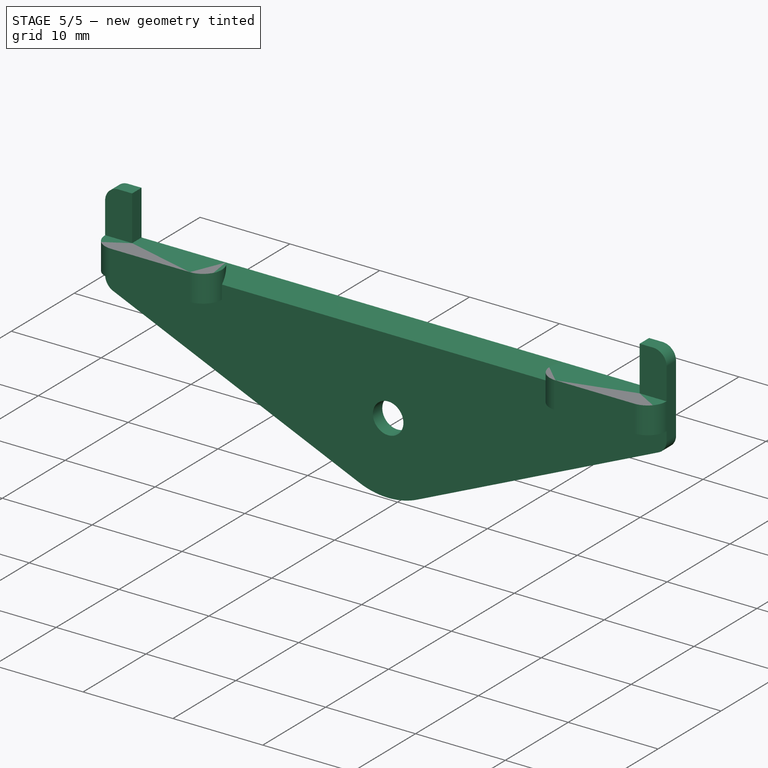
[diagram: stage 5 of 5 — iso view after this stage's code; geometry added in this stage tinted green]
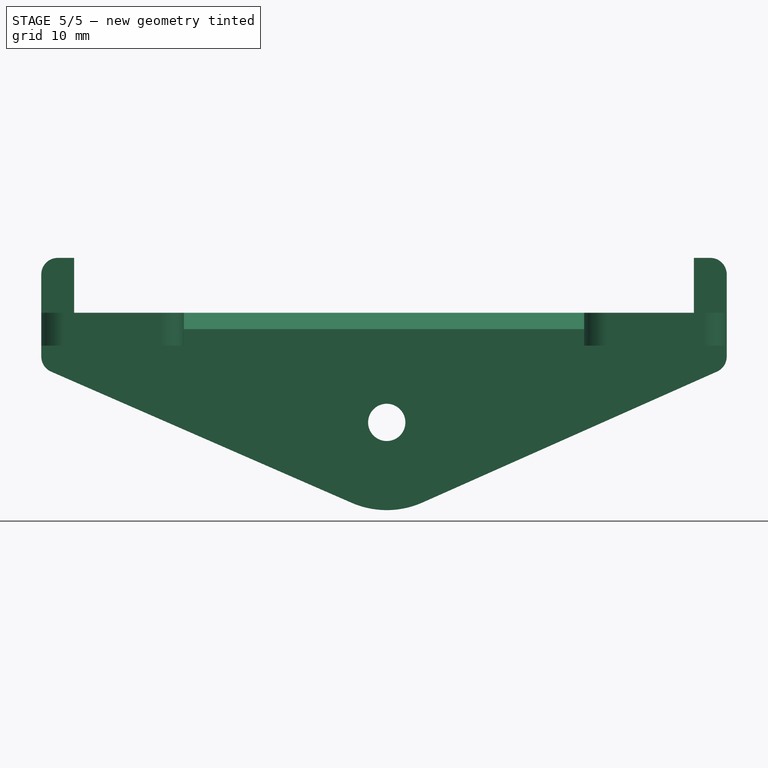
[diagram: stage 5 of 5 — front view after this stage's code; geometry added in this stage tinted green]
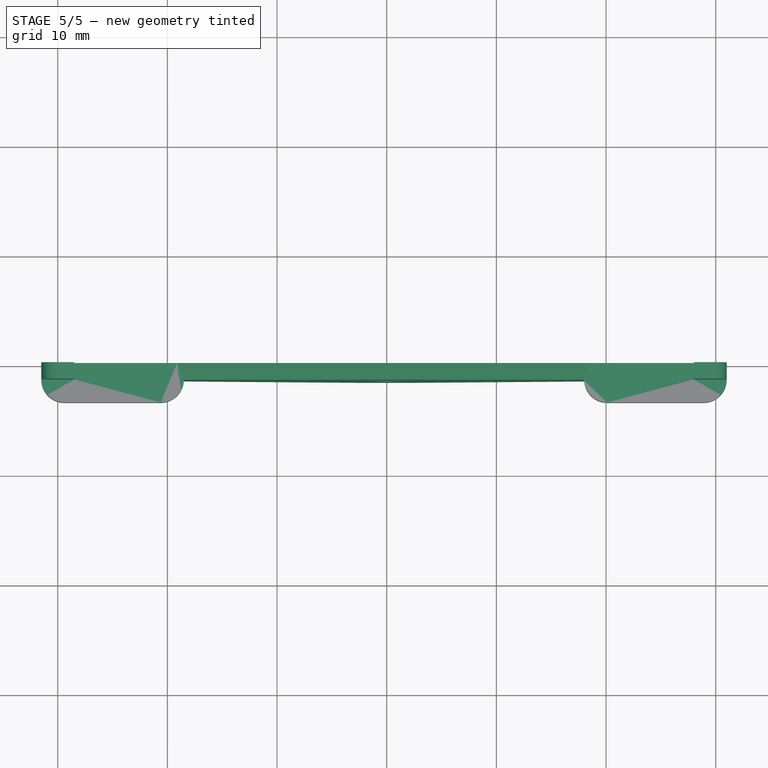
[diagram: stage 5 of 5 — top view after this stage's code; geometry added in this stage tinted green]
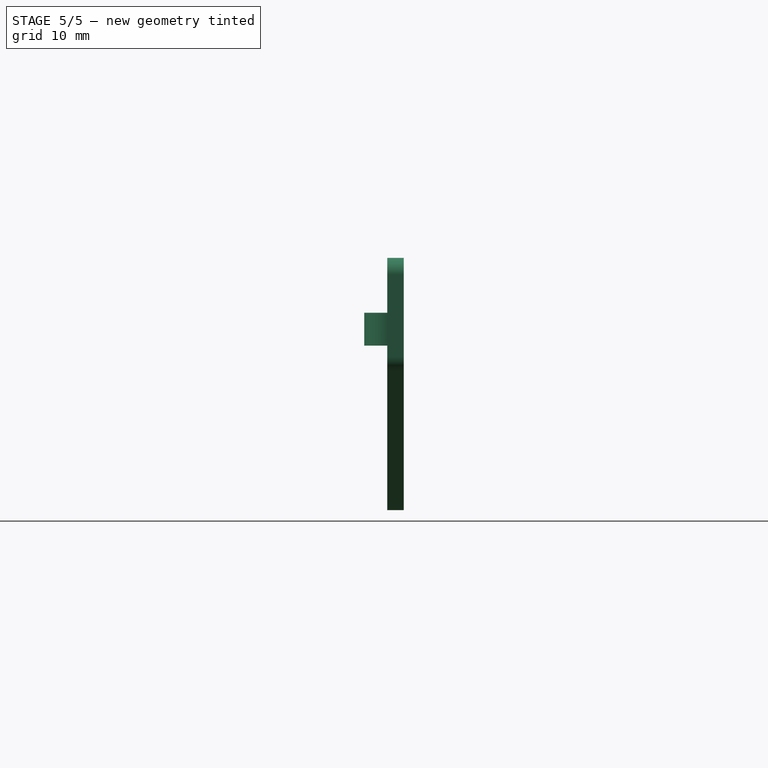
[diagram: stage 5 of 5 — right view after this stage's code; geometry added in this stage tinted green]
FEATURE [PartDesign::Body] Body001  label="Printer attachment"
  AllowCompound = true
  Group = -> [Binder,Sketch005,Pad004,LinearPattern,Sketch006,Pad005,Sketch007,Pad006,Sketch008,Pad007,Pocket002,Sketch009,Sketch012,Pocket003,Pad008,Sketch010,Pocket,Sketch011,Pocket001,Sketch013,Hole001,Sketch014,Pocket004]
  Origin = -> Origin002
  Tip = -> Pocket004
FEATURE [App::Point] Origin005  label="Origin006"
  Role = Origin
FEATURE [PartDesign::SubShapeBinder] Binder001
  BindCopyOnChange = 0
  BindMode = 0
  ClaimChildren = false
  Context = -> Body002 [Binder001.]
  Fuse = false
  MakeFace = true
  OffsetFill = false
  OffsetIntersection = false
  OffsetJoinType = 0
  OffsetOpenResult = false
  PartialLoad = false
  Refine = true
  Relative = true
  Support = -> [Body001]
  _Version = 2
FEATURE [Sketcher::SketchObject] Sketch015
  ArcFitTolerance = 1e-06
  AttachmentSupport = -> [Origin004]
  ExternalGeometry = -> [Binder001]
  ExternalTypes = [0,0,0,0]
  FullyConstrained = true
  MakeInternals = false
  MapMode = 5
  Placement = pos=(0,0,0) rot=(1,0,0;1.5708rad)
  _ExternalGeoVersion = 1
  sketch-geometry (16):
    g0: LineSegment StartX=-28.5 StartY=295 StartZ=0 EndX=-30 EndY=295 EndZ=0
    g1: ArcOfCircle CenterX=-30 CenterY=293.5 CenterZ=0 NormalX=0 NormalY=0 NormalZ=1 AngleXU=0 Radius=1.5 StartAngle=1.5708 EndAngle=3.14159
    g2: LineSegment StartX=-31.5 StartY=293.5 StartZ=0 EndX=-31.5 EndY=286 EndZ=0
    g3: ArcOfCircle CenterX=-30 CenterY=286 CenterZ=0 NormalX=0 NormalY=0 NormalZ=1 AngleXU=0 Radius=1.5 StartAngle=3.14159 EndAngle=4.3009
    g4: LineSegment StartX=-30.6 StartY=284.625 StartZ=0 EndX=-3.19978 EndY=272.668 EndZ=0
    g5: ArcOfCircle CenterX=0 CenterY=280 CenterZ=0 NormalX=0 NormalY=0 NormalZ=1 AngleXU=0 Radius=8 StartAngle=4.3009 EndAngle=5.13067
    g6: LineSegment StartX=3.24955 StartY=272.69 StartZ=0 EndX=30.1093 EndY=284.629 EndZ=0
    g7: ArcOfCircle CenterX=29.5 CenterY=286 CenterZ=0 NormalX=0 NormalY=0 NormalZ=1 AngleXU=0 Radius=1.5 StartAngle=5.13067 EndAngle=6.28319
    g8: LineSegment StartX=31 StartY=286 StartZ=0 EndX=31 EndY=293.5 EndZ=0
    g9: ArcOfCircle CenterX=29.5 CenterY=293.5 CenterZ=0 NormalX=0 NormalY=0 NormalZ=1 AngleXU=0 Radius=1.5 StartAngle=-2.7e-15 EndAngle=1.5708
    g10: LineSegment StartX=29.5 StartY=295 StartZ=0 EndX=28 EndY=295 EndZ=0
    g11: LineSegment StartX=28 StartY=295 StartZ=0 EndX=28 EndY=290 EndZ=0
    g12: LineSegment StartX=28 StartY=290 StartZ=0 EndX=-28.5 EndY=290 EndZ=0
    g13: LineSegment StartX=-28.5 StartY=290 StartZ=0 EndX=-28.5 EndY=295 EndZ=0
    g14: GeomPoint [constr] X=0 Y=290 Z=0
    g15: GeomPoint [constr] X=0 Y=272 Z=0
  constraints (39):
    c: Coincident(g-6,g0)
    c: Coincident(g0,g-5)
    c: Coincident(g1,g2)
    c: Vertical(g2)
    c: Tangent(g2,g3) = -1.5708
    c: Tangent(g4,g5) = -1.5708
    c: Tangent(g6,g7) = -1.5708
    c: Vertical(g8)
    c: Coincident(g9,g-3)
    c: Coincident(g9,g10)
    c: Coincident(g10,g-4)
    c: Coincident(g10,g11)
    c: Coincident(g11,g-4)
    c: Coincident(g11,g12)
    c: Coincident(g12,g-6)
    c: Coincident(g12,g13)
    c: Coincident(g13,g0)
    c: PointOnObject(g5,g-2)
    c: Horizontal(g1,g1)
    c: Horizontal(g9,g8)
    c: Vertical(g9,g9)
    c: Coincident(g9,g8)
    c: Coincident(g1,g0)
    c: Vertical(g1,g0)
    c: Tangent(g3,g4) = -1.5708
    c: Tangent(g5,g6) = -1.5708
    c: Tangent(g7,g8) = -1.5708
    c: Equal(g3,g7)
    c: Equal(g9,g7)
    c: Equal(g3,g1)
    c: PointOnObject(g14,g-2)
    c: PointOnObject(g14,g12)
    c: DistanceX(g1,g0) = 3
    c: Horizontal(g3,g7)
    c: DistanceY(g3,g-5) = 4
    c: PointOnObject(g15,g5)
    c: PointOnObject(g15,g-2)
    c: DistanceY(g5,g14) = 10
    c: DistanceY(g15,g5) = 8
FEATURE [PartDesign::Pad] Pad009
  Direction = (0,-1,2e-16)
  Length = 1.5
  Length2 = 10
  Profile = -> Sketch015
  ReferenceAxis = -> Sketch015 [N_Axis]
  SideType = 0
  Suppressed = false
  Type = 0
  Type2 = 0
FEATURE [Sketcher::SketchObject] Sketch016
  ArcFitTolerance = 1e-06
  AttachmentSupport = -> [Pad009]
  ExternalGeometry = -> [Pad009,Binder001]
  ExternalTypes = [0,0,0,0]
  FullyConstrained = true
  MakeInternals = false
  MapMode = 5
  Placement = pos=(0,6.44e-14,290) rot=(0,0,1;0rad)
  _ExternalGeoVersion = 1
  sketch-geometry (8):
    g0: ArcOfCircle CenterX=-29.4 CenterY=-1.5 CenterZ=0 NormalX=0 NormalY=0 NormalZ=1 AngleXU=0 Radius=2.1 StartAngle=3.14159 EndAngle=4.71239
    g1: ArcOfCircle CenterX=28.9 CenterY=-1.5 CenterZ=0 NormalX=0 NormalY=0 NormalZ=1 AngleXU=0 Radius=2.1 StartAngle=4.71239 EndAngle=6.28319
    g2: ArcOfCircle CenterX=-20.6 CenterY=-1.5 CenterZ=0 NormalX=0 NormalY=0 NormalZ=1 AngleXU=0 Radius=2.1 StartAngle=4.71239 EndAngle=6.28319
    g3: LineSegment StartX=-29.4 StartY=-3.6 StartZ=0 EndX=-20.6 EndY=-3.6 EndZ=0
    g4: LineSegment StartX=-31.5 StartY=-1.5 StartZ=0 EndX=-18.5 EndY=-1.5 EndZ=0
    g5: ArcOfCircle CenterX=20.1 CenterY=-1.5 CenterZ=0 NormalX=0 NormalY=0 NormalZ=1 AngleXU=0 Radius=2.1 StartAngle=3.14159 EndAngle=4.71239
    g6: LineSegment StartX=20.1 StartY=-3.6 StartZ=0 EndX=28.9 EndY=-3.6 EndZ=0
    g7: LineSegment StartX=18 StartY=-1.5 StartZ=0 EndX=31 EndY=-1.5 EndZ=0
  constraints (26):
    c: Coincident(g0,g-3)
    c: Coincident(g1,g-4)
    c: Horizontal(g0,g0)
    c: Horizontal(g1,g1)
    c: Vertical(g1,g1)
    c: Vertical(g0,g0)
    c: PointOnObject(g0,g-5)
    c: PointOnObject(g1,g-6)
    c: Horizontal(g2,g2)
    c: Vertical(g2,g-5)
    c: Vertical(g2,g2)
    c: Coincident(g3,g0)
    c: Coincident(g3,g2)
    c: Horizontal(g3)
    c: Coincident(g4,g0)
    c: Coincident(g4,g2)
    c: Horizontal(g4)
    c: Horizontal(g5,g5)
    c: Vertical(g5,g5)
    c: Coincident(g6,g1)
    c: Horizontal(g6)
    c: Vertical(g-6,g5)
    c: Coincident(g7,g5)
    c: Coincident(g7,g1)
    c: Horizontal(g7)
    c: Coincident(g5,g6)
FEATURE [PartDesign::Pad] Pad010
  BaseFeature = -> Pad009
  Direction = (0,0,1)
  Length = 3
  Length2 = 10
  Profile = -> Sketch016
  ReferenceAxis = -> Sketch016 [N_Axis]
  Refine = true
  Reversed = true
  SideType = 0
  Suppressed = false
  Type = 0
  Type2 = 0
FEATURE [Sketcher::SketchObject] Sketch017
  ArcFitTolerance = 1e-06
  AttachmentSupport = -> [Pad010]
  ExternalGeometry = -> [Pad010]
  ExternalTypes = [0]
  FullyConstrained = true
  MakeInternals = false
  MapMode = 5
  Placement = pos=(0,-1.5,0) rot=(1,0,0;1.5708rad)
  _ExternalGeoVersion = 1
  sketch-geometry (1):
    g0: GeomPoint X=0 Y=280 Z=0
  constraints (1):
    c: Coincident(g0,g-3)
FEATURE [PartDesign::Hole] Hole002
  BaseFeature = -> Pad010
  BaseProfileType = 7
  CustomThreadClearance = 0
  Depth = 25
  DepthType = 0
  Diameter = 3.4
  DrillForDepth = false
  DrillPoint = 1
  DrillPointAngle = 118
  HoleCutCountersinkAngle = 90
  HoleCutCustomValues = false
  HoleCutDepth = 0
  HoleCutDiameter = 0
  HoleCutType = 0
  ModelThread = false
  Profile = -> Sketch017
  Suppressed = false
  Tapered = false
  TaperedAngle = 90
  ThreadClass = 0
  ThreadDepth = 25
  ThreadDepthType = 0
  ThreadDiameter = 3
  ThreadDirection = 0
  ThreadFit = 0
  ThreadSize = 9
  ThreadType = 1
  Threaded = false
  UseCustomThreadClearance = false
FEATURE [PartDesign::Chamfer] Chamfer
  Angle = 45
  Base = -> Hole002 [Edge29]
  BaseFeature = -> Hole002
  ChamferType = 0
  FlipDirection = false
  Size = 1.49
  Size2 = 1
  SupportTransform = false
  Suppressed = false
  UseAllEdges = false
FEATURE [PartDesign::Body] Body002  label="Bottom of window fastener"
  AllowCompound = false
  Group = -> [Binder001,Sketch015,Pad009,Sketch016,Pad010,Sketch017,Hole002,Chamfer]
  Origin = -> Origin004
  Tip = -> Chamfer
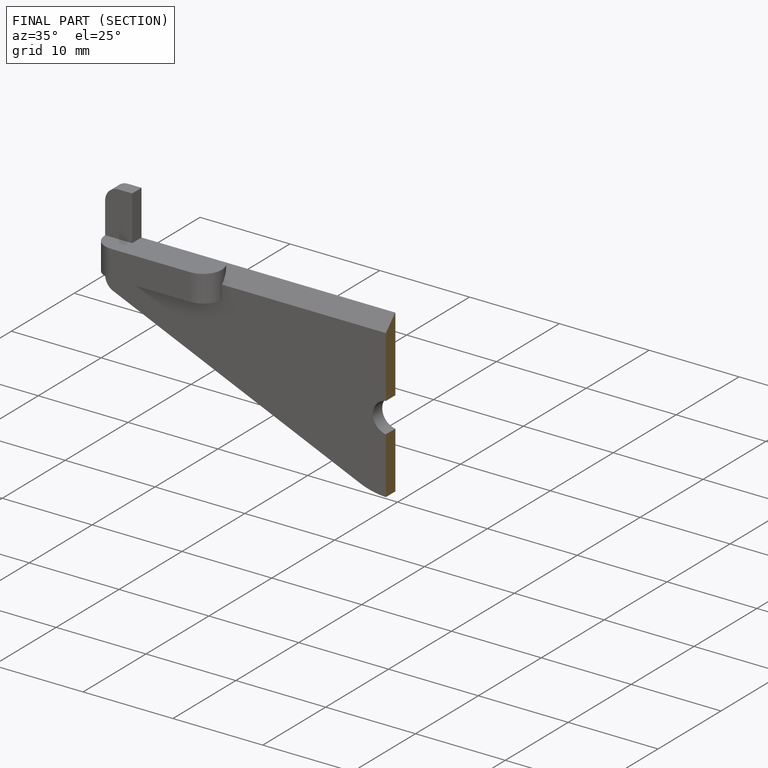
[diagram: finished part — half-section view (interior)]
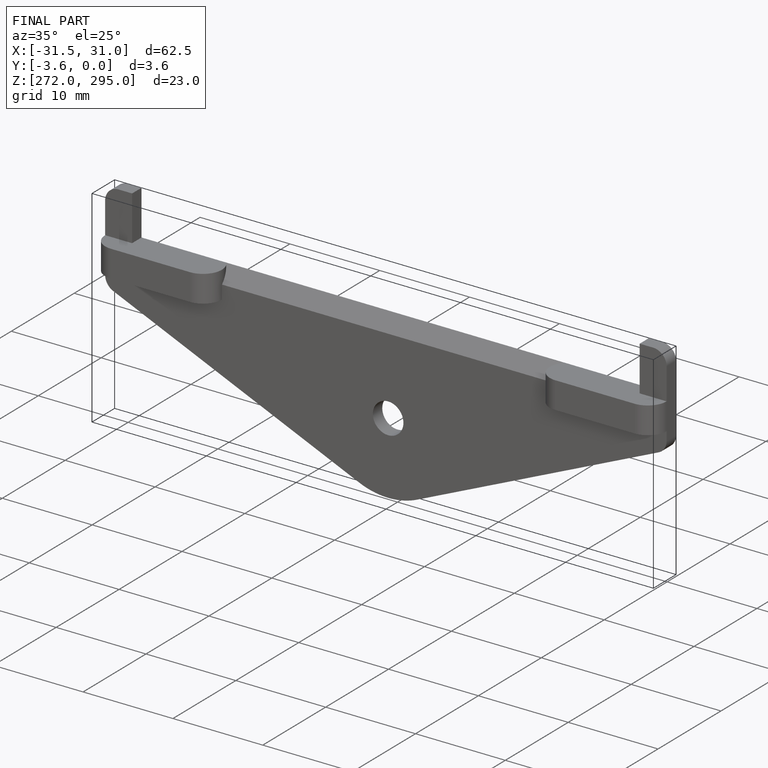
[diagram: finished part — iso view with bounding-box wireframe]
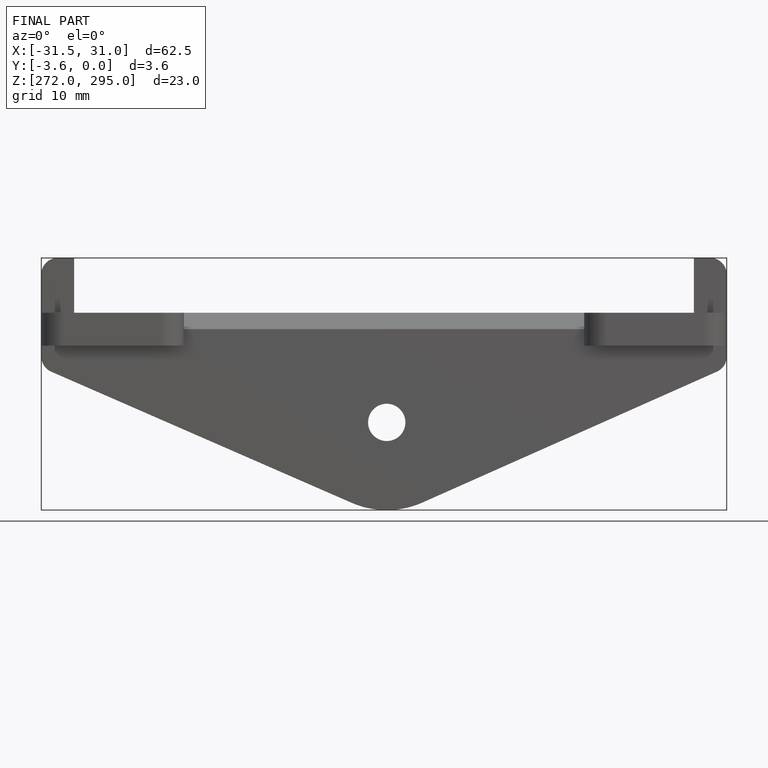
[diagram: finished part — front view with bounding-box wireframe]
